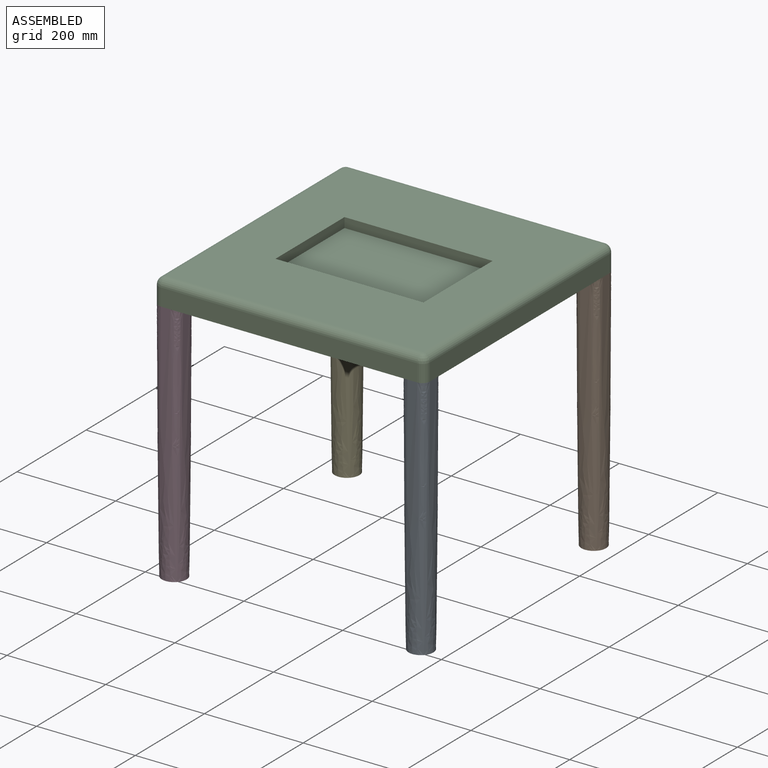
[diagram: assembled view]
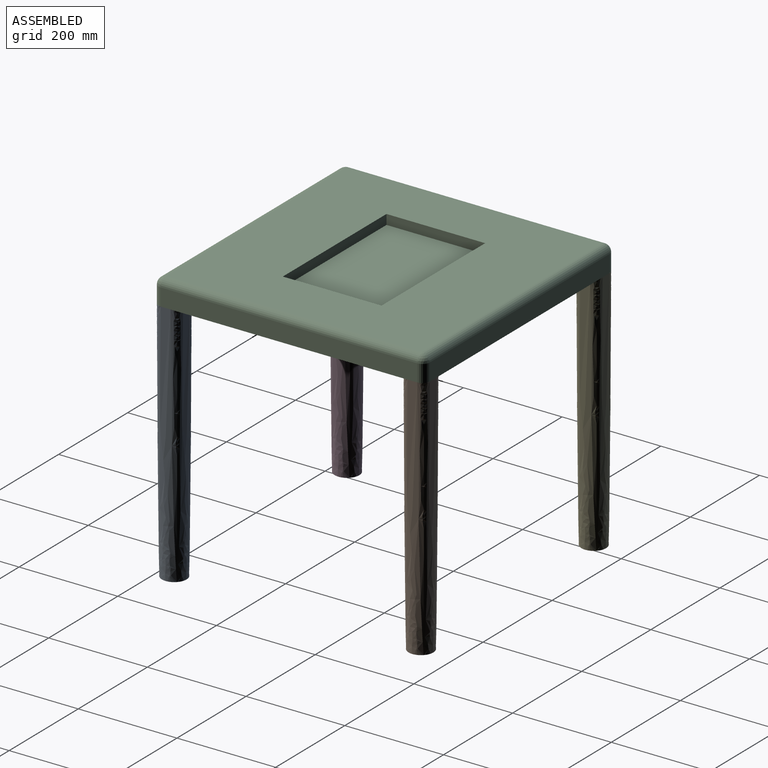
[diagram: assembled view, second angle]
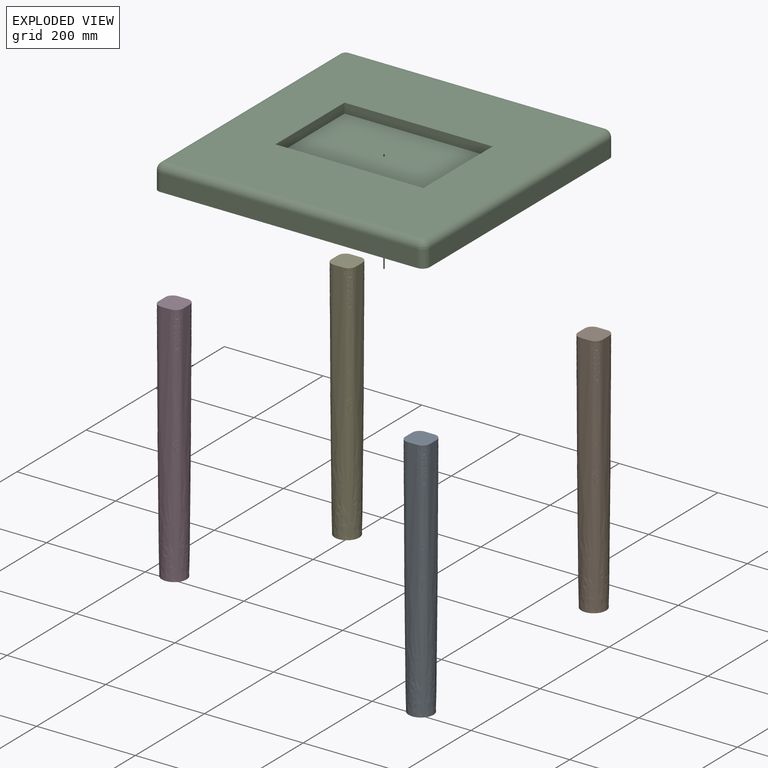
[diagram: exploded view]
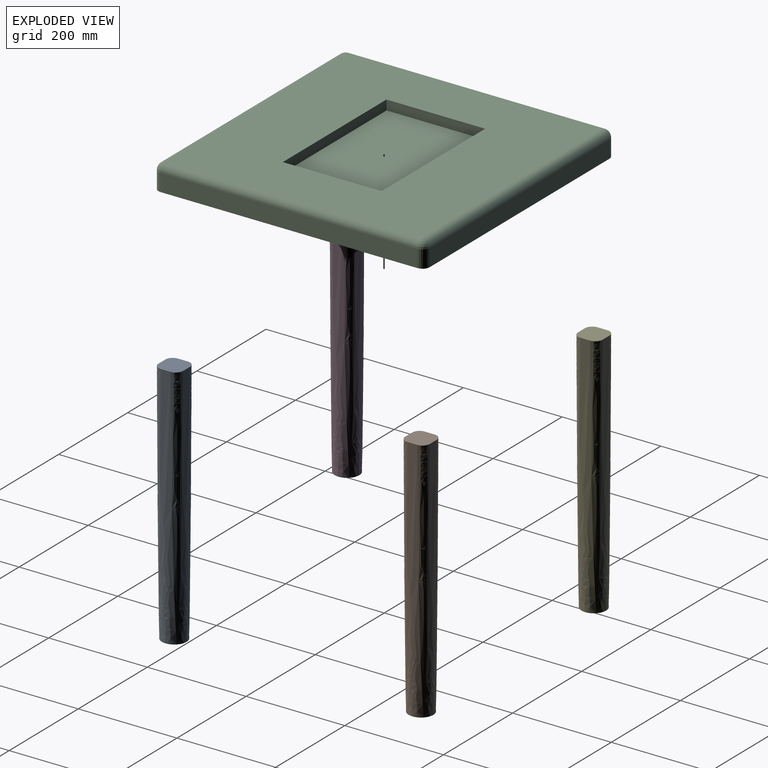
[diagram: exploded view, second angle]
ASSEMBLY  parts=5 mates=4
PART A: 10 faces, bbox 51.4x51.4x552.2 mm
  f0: plane 50x50mm, normal (0,0,-1), area 1963.5mm2, adj f2,f3,f4,f5
  f1: plane 50.54x50.54mm, normal (0,0,1), area 2306.9mm2, adj f2,f3,f4,f5,f6,f7,f8,f9
  f2: bspline ~500x50mm, area 15207.3mm2, adj f0,f1,f8,f9
  f3: bspline ~500x50mm, area 15207.3mm2, adj f0,f1,f7,f8
  f4: bspline ~500x50mm, area 15207.3mm2, adj f0,f1,f6,f7
  f5: bspline ~500x50mm, area 15207.3mm2, adj f0,f1,f6,f9
  f6: bspline ~551.67x15.67mm, area 4916.6mm2, adj f1,f4,f5
  f7: bspline ~551.67x15.67mm, area 4916.6mm2, adj f1,f3,f4
  f8: bspline ~551.67x15.67mm, area 4925.3mm2, adj f1,f2,f3
  f9: bspline ~551.67x15.67mm, area 4916.6mm2, adj f1,f2,f5
PART B: same geometry as A
PART C: 23 faces, bbox 550x550x50 mm
  f0: plane 520x520mm, normal (0,0,1), area 210400mm2, adj f9,f10,f14,f15,f18,f19,f20,f21
  f1: plane 520x35mm, normal (0,-1,0), area 18200mm2, adj f5,f8,f14,f17
  f2: plane 520x35mm, normal (1,0,0), area 18200mm2, adj f5,f11,f15,f17
  f3: plane 520x35mm, normal (0,1,0), area 18200mm2, adj f5,f6,f10,f11
  f4: plane 520x35mm, normal (-1,0,0), area 18200mm2, adj f5,f6,f8,f9
  f5: plane 550x550mm, normal (0,0,-1), area 302306.9mm2, adj f1,f2,f3,f4,f6,f8,f11,f17
  f6: cylinder r=15mm len=35mm, axis (0,0,-1), area 824.7mm2, adj f3,f4,f5,f7
  f7: sphere r=15mm, area 353.4mm2, adj f6,f9,f10
  f8: cylinder r=15mm len=35mm, axis (0,0,1), area 824.7mm2, adj f1,f4,f5,f12
  f9: cylinder r=15mm len=520mm, axis (0,1,0), area 12252.2mm2, adj f0,f4,f7,f12
  f10: cylinder r=15mm len=520mm, axis (1,0,0), area 12252.2mm2, adj f0,f3,f7,f13
  f11: cylinder r=15mm len=35mm, axis (0,0,1), area 824.7mm2, adj f2,f3,f5,f13
  f12: sphere r=15mm, area 353.4mm2, adj f8,f9,f14
  f13: sphere r=15mm, area 353.4mm2, adj f10,f11,f15
  f14: cylinder r=15mm len=520mm, axis (-1,0,0), area 12252.2mm2, adj f0,f1,f12,f16
  f15: cylinder r=15mm len=520mm, axis (0,-1,0), area 12252.2mm2, adj f0,f2,f13,f16
  f16: sphere r=15mm, area 353.4mm2, adj f14,f15,f17
  f17: cylinder r=15mm len=35mm, axis (0,0,-1), area 824.7mm2, adj f1,f2,f5,f16
  f18: plane 300x20mm, normal (0,1,0), area 6000mm2, adj f0,f19,f21,f22
  f19: plane 200x20mm, normal (-1,0,0), area 4000mm2, adj f0,f18,f20,f22
  f20: plane 300x20mm, normal (0,-1,0), area 6000mm2, adj f0,f19,f21,f22
  f21: plane 200x20mm, normal (1,0,0), area 4000mm2, adj f0,f18,f20,f22
  f22: plane 300x200mm, normal (0,0,1), area 60000mm2, adj f18,f19,f20,f21
PART D: same geometry as A
PART E: same geometry as A
PLACE A t=(106.49,-210.96,-342.16)mm
PLACE B t=(106.49,289.04,-342.16)mm
PLACE C t=(-143.51,39.04,157.84)mm fixed
PLACE D t=(-393.51,-210.96,-342.16)mm
PLACE E t=(-393.51,289.04,-342.16)mm
MATE fastened D.f1 <-> C.f5  axis (0,0,1) through (-403.51,-235.96,157.84)mm
MATE fastened A.f1 <-> C.f5  axis (0,0,1) through (116.49,-235.96,157.84)mm
MATE fastened E.f1 <-> C.f5  axis (0,0,1) through (-403.51,314.04,157.84)mm
MATE fastened B.f1 <-> C.f5  axis (0,0,1) through (131.49,299.04,157.84)mm
